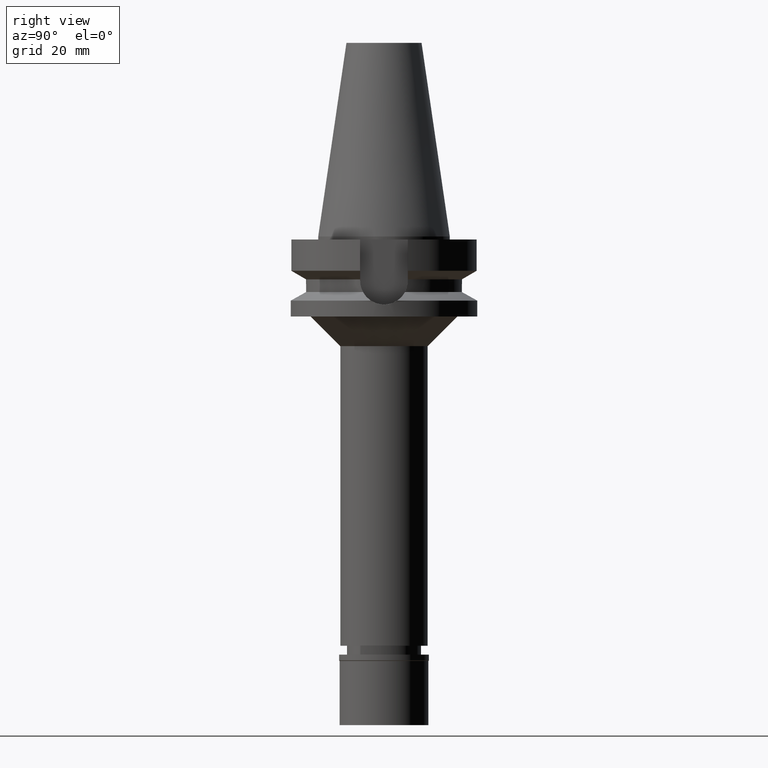
[diagram: clean part render]
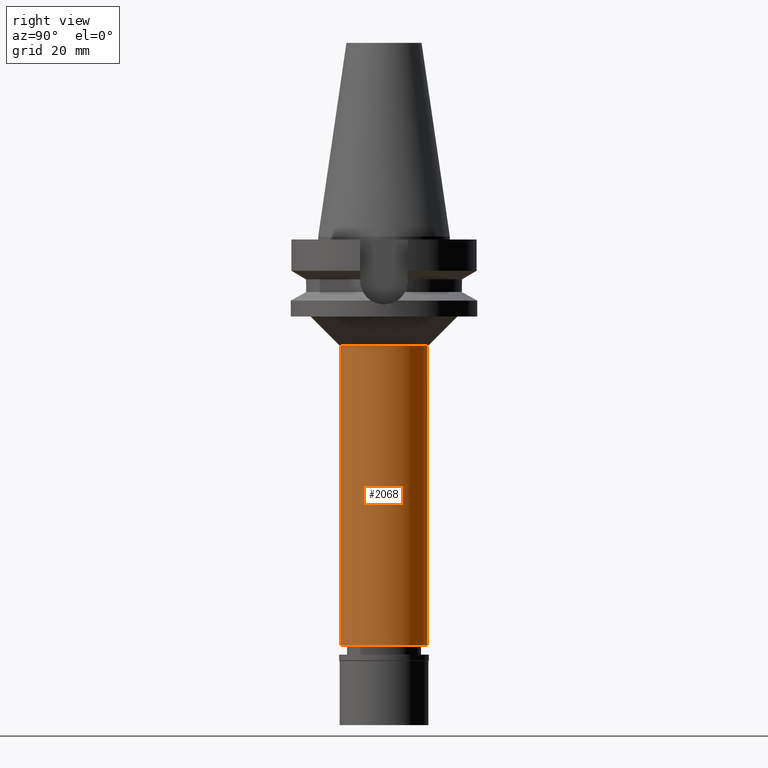
[diagram: same view with one face highlighted and labeled with its STEP entity id]
A machine part, right view. The second image highlights one B-rep face of the part: STEP entity #2068.
In plain terms, the highlighted cylindrical surface (partial cylindrical patch) has radius 14.75 mm, axis along (0, 0, -1).
Its self-contained STEP definition (entity closure, byte-faithful):
#155 = CYLINDRICAL_SURFACE ( 'NONE', #2787, 14.75000000000000000 ) ;
#214 = VERTEX_POINT ( 'NONE', #963 ) ;
#375 = VECTOR ( 'NONE', #626, 1000.000000000000000 ) ;
#390 = FACE_OUTER_BOUND ( 'NONE', #1124, .T. ) ;
#440 = EDGE_CURVE ( 'NONE', #2404, #451, #465, .T. ) ;
#451 = VERTEX_POINT ( 'NONE', #537 ) ;
#465 = CIRCLE ( 'NONE', #1129, 14.75000000000000000 ) ;
#484 = EDGE_CURVE ( 'NONE', #214, #3031, #1264, .T. ) ;
#511 = ORIENTED_EDGE ( 'NONE', *, *, #484, .T. ) ;
#536 = CARTESIAN_POINT ( 'NONE',  ( 0.0000000000000000000, -14.75000000000000000, -138.1999999999999886 ) ) ;
#537 = CARTESIAN_POINT ( 'NONE',  ( 0.0000000000000000000, 14.75000000000000000, -138.1999999999999886 ) ) ;
#626 = DIRECTION ( 'NONE',  ( 0.0000000000000000000, 0.0000000000000000000, -1.000000000000000000 ) ) ;
#677 = DIRECTION ( 'NONE',  ( 0.0000000000000000000, -1.000000000000000000, 0.0000000000000000000 ) ) ;
#704 = ORIENTED_EDGE ( 'NONE', *, *, #2104, .T. ) ;
#788 = VECTOR ( 'NONE', #2255, 1000.000000000000000 ) ;
#963 = CARTESIAN_POINT ( 'NONE',  ( 0.0000000000000000000, 14.75000000000000000, -37.00000000000000000 ) ) ;
#1124 = EDGE_LOOP ( 'NONE', ( #511, #704, #1862, #1541 ) ) ;
#1129 = AXIS2_PLACEMENT_3D ( 'NONE', #1533, #2244, #2731 ) ;
#1264 = CIRCLE ( 'NONE', #3033, 14.75000000000000000 ) ;
#1369 = CARTESIAN_POINT ( 'NONE',  ( 0.0000000000000000000, -14.75000000000000000, -37.00000000000000000 ) ) ;
#1490 = CARTESIAN_POINT ( 'NONE',  ( 0.0000000000000000000, 0.0000000000000000000, -37.00000000000000000 ) ) ;
#1533 = CARTESIAN_POINT ( 'NONE',  ( 0.0000000000000000000, 0.0000000000000000000, -138.1999999999999886 ) ) ;
#1541 = ORIENTED_EDGE ( 'NONE', *, *, #2653, .F. ) ;
#1550 = CARTESIAN_POINT ( 'NONE',  ( 0.0000000000000000000, 14.75000000000000000, -37.00000000000000000 ) ) ;
#1862 = ORIENTED_EDGE ( 'NONE', *, *, #440, .T. ) ;
#1954 = DIRECTION ( 'NONE',  ( 0.0000000000000000000, 1.000000000000000000, 0.0000000000000000000 ) ) ;
#2068 = ADVANCED_FACE ( 'NONE', ( #390 ), #155, .T. ) ;
#2081 = DIRECTION ( 'NONE',  ( 0.0000000000000000000, 0.0000000000000000000, -1.000000000000000000 ) ) ;
#2104 = EDGE_CURVE ( 'NONE', #3031, #2404, #2568, .T. ) ;
#2244 = DIRECTION ( 'NONE',  ( 0.0000000000000000000, 0.0000000000000000000, 1.000000000000000000 ) ) ;
#2255 = DIRECTION ( 'NONE',  ( 0.0000000000000000000, 0.0000000000000000000, -1.000000000000000000 ) ) ;
#2336 = CARTESIAN_POINT ( 'NONE',  ( 0.0000000000000000000, 0.0000000000000000000, 0.0000000000000000000 ) ) ;
#2404 = VERTEX_POINT ( 'NONE', #536 ) ;
#2464 = LINE ( 'NONE', #1550, #788 ) ;
#2506 = DIRECTION ( 'NONE',  ( 0.0000000000000000000, 0.0000000000000000000, -1.000000000000000000 ) ) ;
#2568 = LINE ( 'NONE', #1369, #375 ) ;
#2653 = EDGE_CURVE ( 'NONE', #214, #451, #2464, .T. ) ;
#2731 = DIRECTION ( 'NONE',  ( 0.0000000000000000000, -1.000000000000000000, 0.0000000000000000000 ) ) ;
#2787 = AXIS2_PLACEMENT_3D ( 'NONE', #2336, #2081, #677 ) ;
#2912 = CARTESIAN_POINT ( 'NONE',  ( 0.0000000000000000000, -14.75000000000000000, -37.00000000000000000 ) ) ;
#3031 = VERTEX_POINT ( 'NONE', #2912 ) ;
#3033 = AXIS2_PLACEMENT_3D ( 'NONE', #1490, #2506, #1954 ) ;